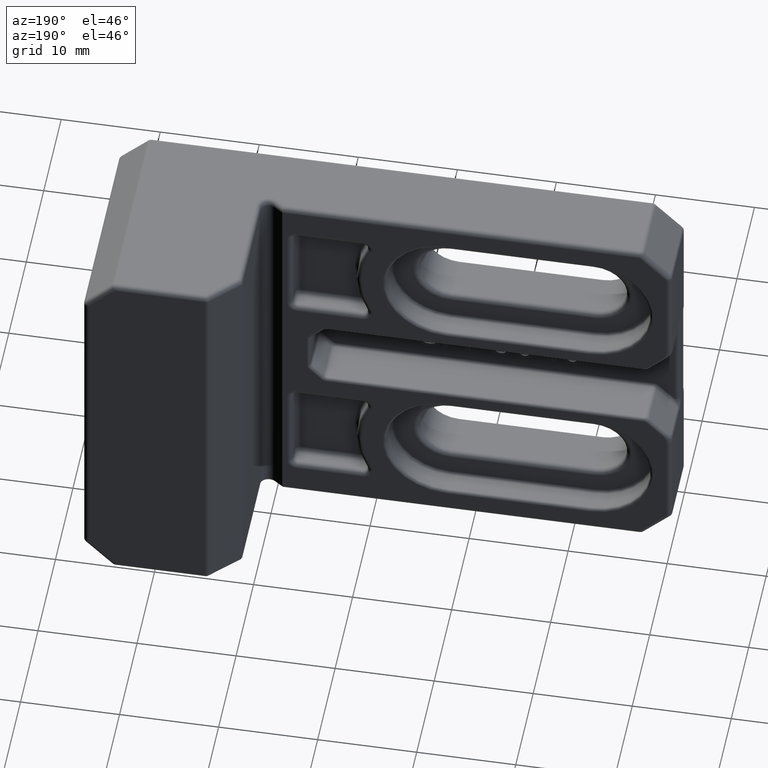
[diagram: clean part render]
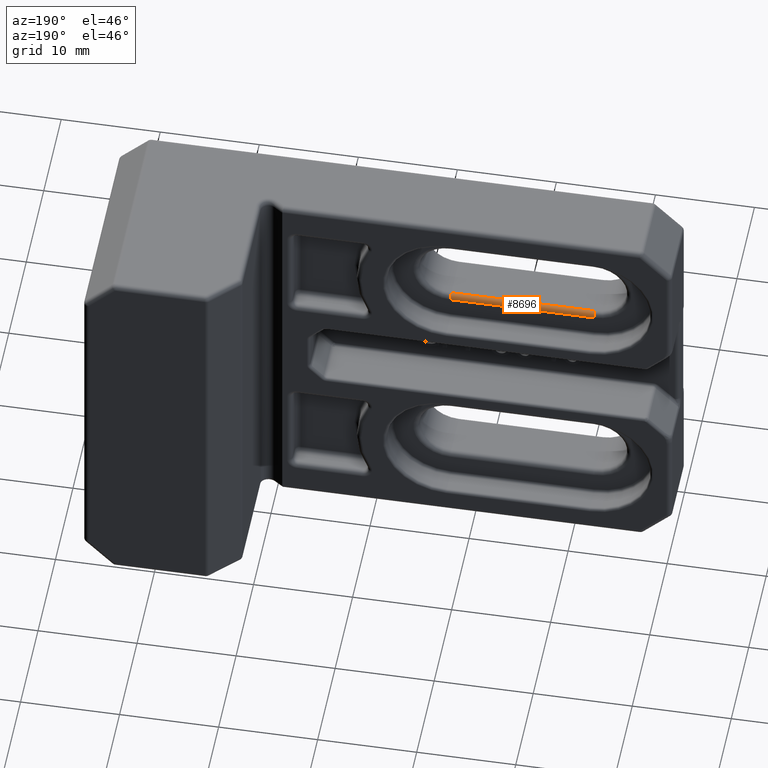
[diagram: same view with one face highlighted and labeled with its STEP entity id]
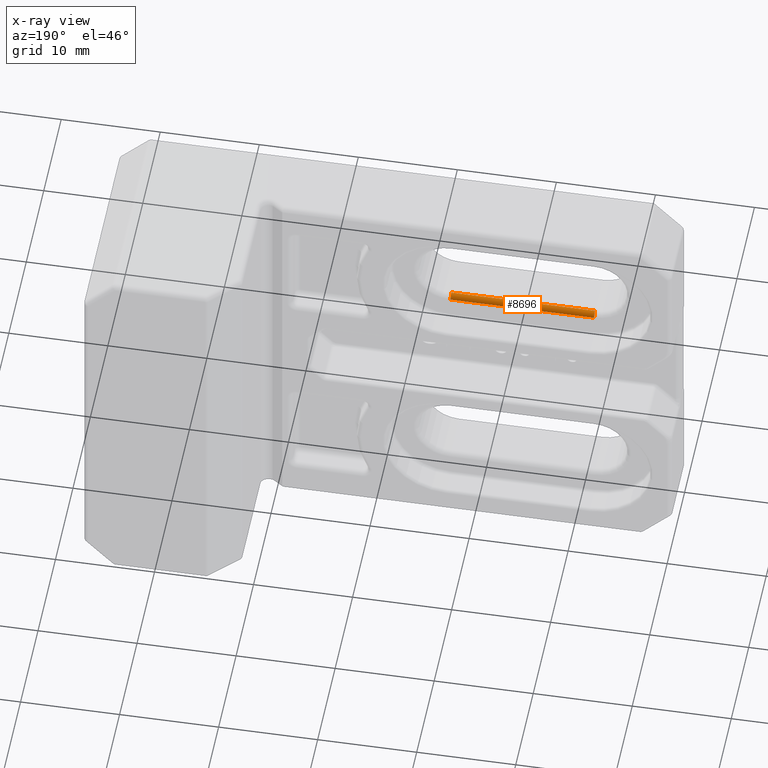
[diagram: x-ray of the same camera — body ghosted, the highlighted face saturated]
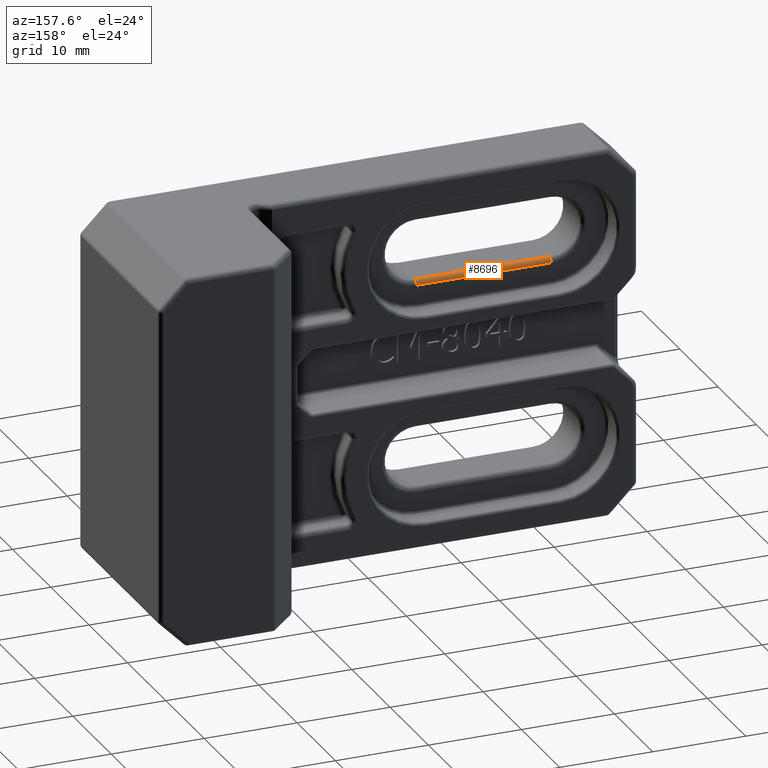
[diagram: same view with one face highlighted and labeled with its STEP entity id]
A machine part, auxiliary view. The second image highlights one B-rep face of the part: STEP entity #8696.
The next image is the same camera in x-ray: the body ghosted, the highlighted face saturated — about 0% of this face is hidden behind the body in this view.
A second angle (auxiliary view) of the same face is appended — the face is thin or edge-on in the first view.
In plain terms, the highlighted cylindrical surface (edge-blend (fillet) strip) has radius 0.5 mm, axis along (-1, -0, -0).
Its self-contained STEP definition (entity closure, byte-faithful):
#385=LINE('',#13794,#1099);
#395=LINE('',#13837,#1109);
#1099=VECTOR('',#10202,14.4999992351898);
#1109=VECTOR('',#10248,14.499999319334);
#1840=CYLINDRICAL_SURFACE('',#9429,0.5);
#2115=FACE_OUTER_BOUND('',#2678,.T.);
#2678=EDGE_LOOP('',(#6407,#6408,#6409,#6410));
#3308=CIRCLE('',#9427,0.5);
#3310=CIRCLE('',#9430,0.499999999999999);
#3766=VERTEX_POINT('',#13788);
#3768=VERTEX_POINT('',#13792);
#3781=VERTEX_POINT('',#13829);
#3783=VERTEX_POINT('',#13835);
#4592=EDGE_CURVE('',#3766,#3768,#385,.T.);
#4613=EDGE_CURVE('',#3781,#3783,#395,.T.);
#4872=EDGE_CURVE('',#3766,#3783,#3308,.T.);
#4874=EDGE_CURVE('',#3768,#3781,#3310,.T.);
#6407=ORIENTED_EDGE('',*,*,#4874,.T.);
#6408=ORIENTED_EDGE('',*,*,#4613,.T.);
#6409=ORIENTED_EDGE('',*,*,#4872,.F.);
#6410=ORIENTED_EDGE('',*,*,#4592,.T.);
#8696=ADVANCED_FACE('',(#2115),#1840,.T.);
#9427=AXIS2_PLACEMENT_3D('',#14355,#10825,#10826);
#9429=AXIS2_PLACEMENT_3D('',#14357,#10829,#10830);
#9430=AXIS2_PLACEMENT_3D('',#14358,#10831,#10832);
#10202=DIRECTION('',(-1.,-5.35047240783208E-17,-4.59402652444877E-16));
#10248=DIRECTION('',(1.,5.35047240783208E-17,4.59402652444877E-16));
#10825=DIRECTION('center_axis',(0.999999999999986,0.,-1.68288263438466E-7));
#10826=DIRECTION('ref_axis',(0.,1.,0.));
#10829=DIRECTION('center_axis',(-1.,-5.35047240783208E-17,-4.59402652444877E-16));
#10830=DIRECTION('ref_axis',(-3.62680284060155E-16,0.707106781186547,0.707106781186548));
#10831=DIRECTION('center_axis',(1.,0.,0.));
#10832=DIRECTION('ref_axis',(0.,1.,0.));
#13788=CARTESIAN_POINT('',(22.749999368919,5.,7.50000000000005));
#13792=CARTESIAN_POINT('',(8.25000013372915,5.,7.49999999966206));
#13794=CARTESIAN_POINT('',(19.1249997265316,5.,7.49999999966207));
#13829=CARTESIAN_POINT('',(8.25000013372915,4.5,7.99999999966207));
#13835=CARTESIAN_POINT('',(22.7499994530631,4.5,7.99999999966207));
#13837=CARTESIAN_POINT('',(19.1249997265316,4.5,7.99999999966207));
#14355=CARTESIAN_POINT('Origin',(22.749999368919,4.5,7.50000000000005));
#14357=CARTESIAN_POINT('Origin',(19.1249997265316,4.5,7.49999999966207));
#14358=CARTESIAN_POINT('Origin',(8.25000013372915,4.5,7.49999999966206));